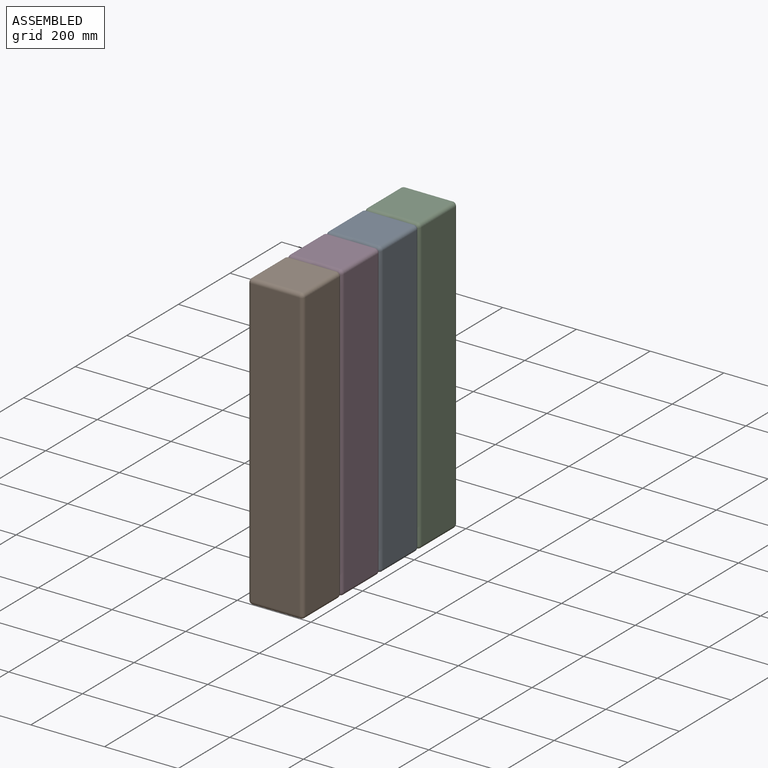
[diagram: assembled view]
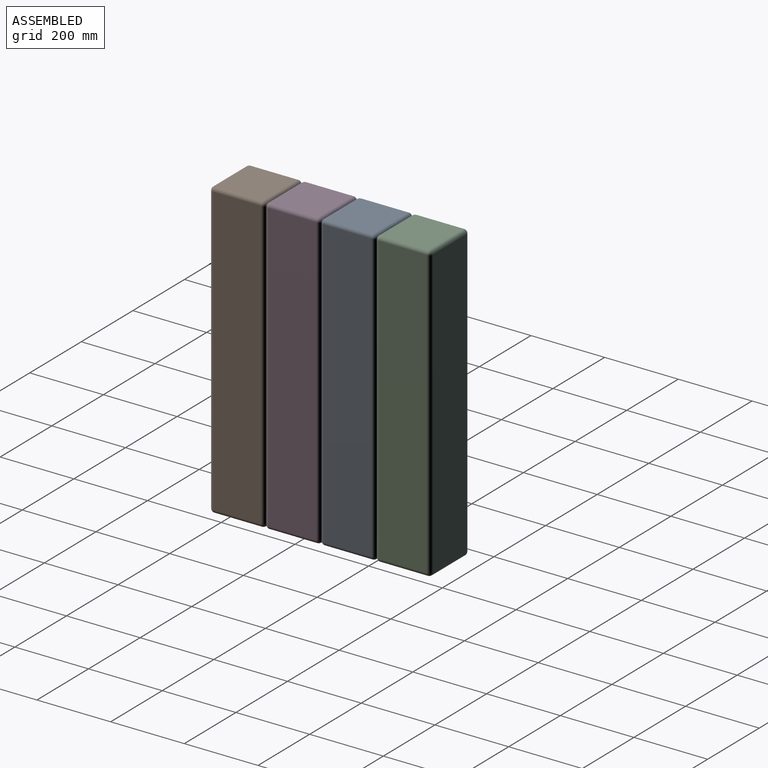
[diagram: assembled view, second angle]
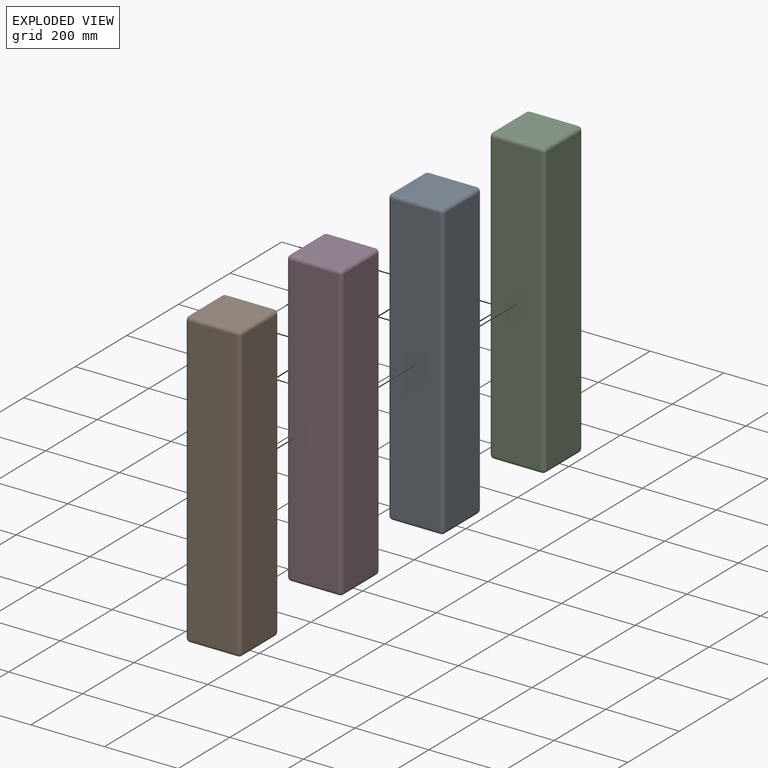
[diagram: exploded view]
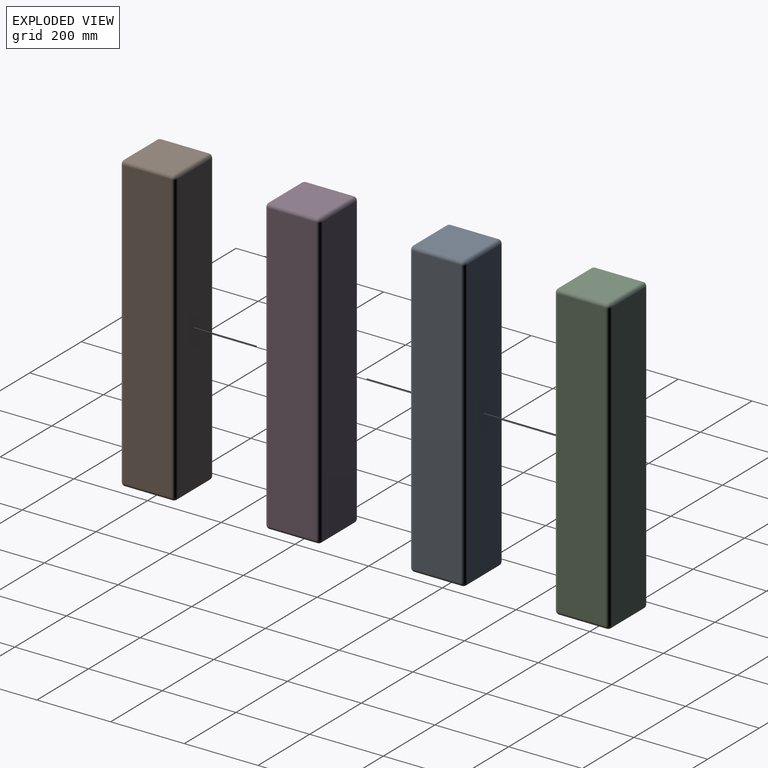
[diagram: exploded view, second angle]
ASSEMBLY  parts=4 mates=3
PART A: 26 faces, bbox 150x150x800 mm
  f0: plane 780x130mm, normal (-1,0,0), area 101400mm2, adj f14,f19,f22,f25
  f1: plane 130x130mm, normal (0,0,-1), area 16900mm2, adj f11,f20,f21,f25
  f2: plane 780x130mm, normal (1,0,0), area 101400mm2, adj f6,f10,f11,f12
  f3: plane 130x130mm, normal (0,0,1), area 16900mm2, adj f6,f9,f13,f14
  f4: plane 780x130mm, normal (0,-1,0), area 101400mm2, adj f9,f10,f19,f20
  f5: plane 780x130mm, normal (0,1,0), area 101400mm2, adj f12,f13,f21,f22
  f6: cylinder r=10mm len=130mm, axis (0,1,0), area 2042mm2, adj f2,f3,f7,f8
  f7: sphere r=10mm, area 157.1mm2, adj f6,f9,f10
  f8: sphere r=10mm, area 157.1mm2, adj f6,f12,f13
  f9: cylinder r=10mm len=130mm, axis (1,0,0), area 2042mm2, adj f3,f4,f7,f15
  f10: cylinder r=10mm len=780mm, axis (0,0,-1), area 12252.2mm2, adj f2,f4,f7,f16
  f11: cylinder r=10mm len=130mm, axis (0,-1,0), area 2042mm2, adj f1,f2,f16,f17
  f12: cylinder r=10mm len=780mm, axis (0,0,1), area 12252.2mm2, adj f2,f5,f8,f17
  f13: cylinder r=10mm len=130mm, axis (-1,0,0), area 2042mm2, adj f3,f5,f8,f18
  f14: cylinder r=10mm len=130mm, axis (0,-1,0), area 2042mm2, adj f0,f3,f15,f18
  f15: sphere r=10mm, area 157.1mm2, adj f9,f14,f19
  f16: sphere r=10mm, area 157.1mm2, adj f10,f11,f20
  f17: sphere r=10mm, area 157.1mm2, adj f11,f12,f21
  f18: sphere r=10mm, area 157.1mm2, adj f13,f14,f22
  f19: cylinder r=10mm len=780mm, axis (0,0,1), area 12252.2mm2, adj f0,f4,f15,f23
  f20: cylinder r=10mm len=130mm, axis (-1,0,0), area 2042mm2, adj f1,f4,f16,f23
  f21: cylinder r=10mm len=130mm, axis (1,0,0), area 2042mm2, adj f1,f5,f17,f24
  f22: cylinder r=10mm len=780mm, axis (0,0,-1), area 12252.2mm2, adj f0,f5,f18,f24
  f23: sphere r=10mm, area 157.1mm2, adj f19,f20,f25
  f24: sphere r=10mm, area 157.1mm2, adj f21,f22,f25
  f25: cylinder r=10mm len=130mm, axis (0,1,0), area 2042mm2, adj f0,f1,f23,f24
PART B: same geometry as A
PART C: same geometry as A
PART D: same geometry as A
PLACE A rot(axis=(1,0,0),180deg) t=(-674.51,-456.79,-1910.83)mm
PLACE B rot(axis=(0,1,0),180deg) t=(-674.51,-756.79,-1910.83)mm fixed
PLACE C rot(axis=(0,1,0),180deg) t=(-674.51,-306.79,-1910.83)mm
PLACE D rot(axis=(1,0,0),180deg) t=(-674.51,-606.79,-1910.83)mm
MATE fastened A.f4 <-> C.f4  axis (0,1,0) through (-674.51,-381.79,-1910.83)mm
MATE fastened B.f5 <-> D.f5  axis (0,1,0) through (-674.51,-681.79,-2300.83)mm
MATE fastened D.f4 <-> A.f5  axis (0,1,0) through (-674.51,-531.79,-1910.83)mm
